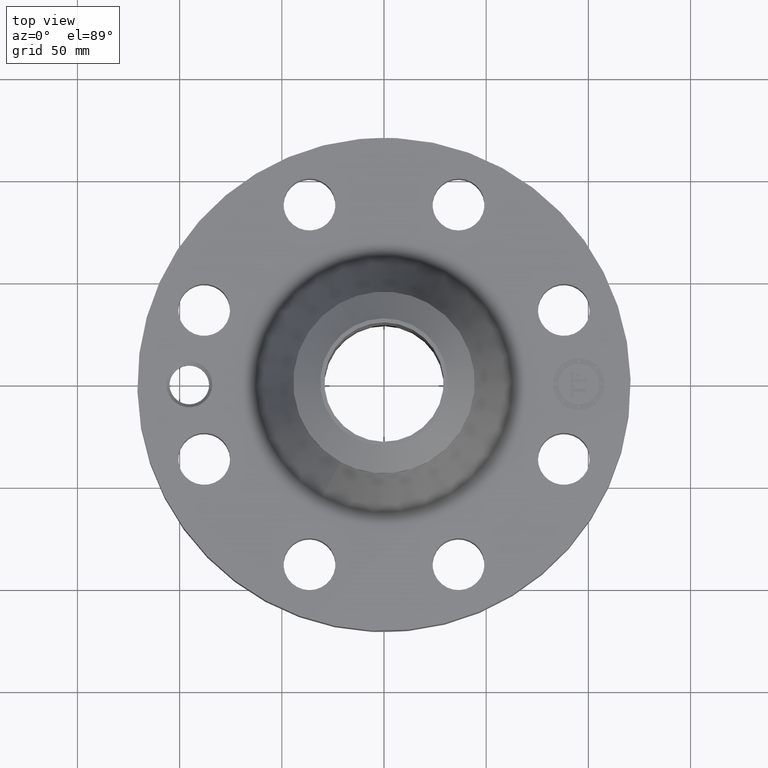
[diagram: clean part render]
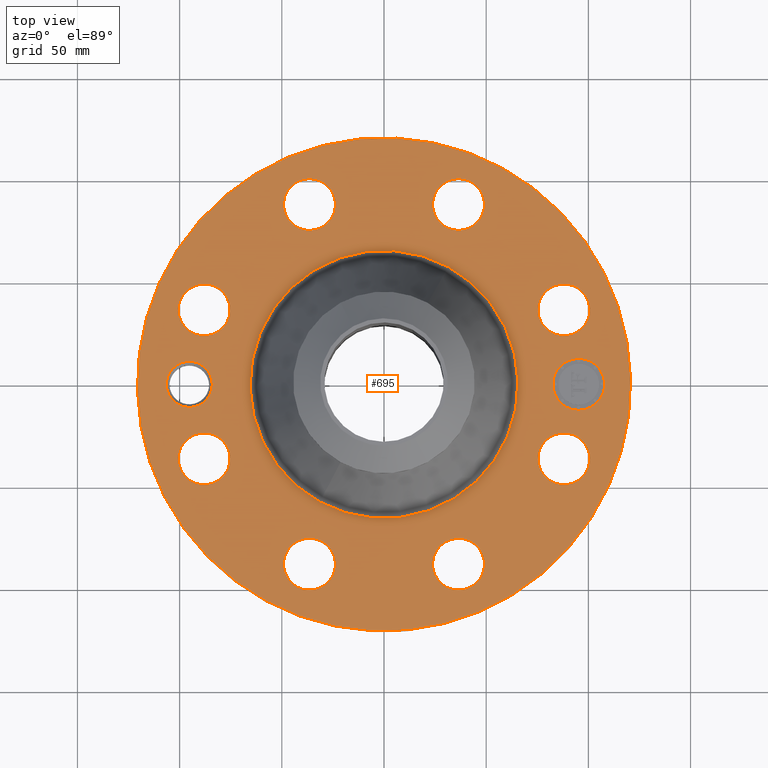
[diagram: same view with one face highlighted and labeled with its STEP entity id]
A machine part, top view. The second image highlights one B-rep face of the part: STEP entity #695.
In plain terms, the highlighted planar face has unit normal (0, 0, -1).
Its self-contained STEP definition (entity closure, byte-faithful):
#58=AXIS2_PLACEMENT_3D('Circle Axis2P3D',#56,#57,$) ;
#375=AXIS2_PLACEMENT_3D('Circle Axis2P3D',#373,#374,$) ;
#491=AXIS2_PLACEMENT_3D('Plane Axis2P3D',#488,#489,#490) ;
#499=AXIS2_PLACEMENT_3D('Circle Axis2P3D',#497,#498,$) ;
#508=AXIS2_PLACEMENT_3D('Circle Axis2P3D',#506,#507,$) ;
#517=AXIS2_PLACEMENT_3D('Circle Axis2P3D',#515,#516,$) ;
#526=AXIS2_PLACEMENT_3D('Circle Axis2P3D',#524,#525,$) ;
#535=AXIS2_PLACEMENT_3D('Circle Axis2P3D',#533,#534,$) ;
#544=AXIS2_PLACEMENT_3D('Circle Axis2P3D',#542,#543,$) ;
#553=AXIS2_PLACEMENT_3D('Circle Axis2P3D',#551,#552,$) ;
#562=AXIS2_PLACEMENT_3D('Circle Axis2P3D',#560,#561,$) ;
#571=AXIS2_PLACEMENT_3D('Circle Axis2P3D',#569,#570,$) ;
#580=AXIS2_PLACEMENT_3D('Circle Axis2P3D',#578,#579,$) ;
#589=AXIS2_PLACEMENT_3D('Circle Axis2P3D',#587,#588,$) ;
#598=AXIS2_PLACEMENT_3D('Circle Axis2P3D',#596,#597,$) ;
#607=AXIS2_PLACEMENT_3D('Circle Axis2P3D',#605,#606,$) ;
#616=AXIS2_PLACEMENT_3D('Circle Axis2P3D',#614,#615,$) ;
#625=AXIS2_PLACEMENT_3D('Circle Axis2P3D',#623,#624,$) ;
#634=AXIS2_PLACEMENT_3D('Circle Axis2P3D',#632,#633,$) ;
#643=AXIS2_PLACEMENT_3D('Circle Axis2P3D',#641,#642,$) ;
#652=AXIS2_PLACEMENT_3D('Circle Axis2P3D',#650,#651,$) ;
#661=AXIS2_PLACEMENT_3D('Circle Axis2P3D',#659,#660,$) ;
#670=AXIS2_PLACEMENT_3D('Circle Axis2P3D',#668,#669,$) ;
#679=AXIS2_PLACEMENT_3D('Circle Axis2P3D',#677,#678,$) ;
#688=AXIS2_PLACEMENT_3D('Circle Axis2P3D',#686,#687,$) ;
#53=CARTESIAN_POINT('Vertex',(-2.27727130838,-4.168517169,1.75000000001)) ;
#56=CARTESIAN_POINT('Axis2P3D Location',(0.,0.,1.75000000001)) ;
#60=CARTESIAN_POINT('Vertex',(2.27727130838,4.168517169,1.75000000001)) ;
#373=CARTESIAN_POINT('Axis2P3D Location',(0.,0.,1.75000000001)) ;
#488=CARTESIAN_POINT('Axis2P3D Location',(0.,4.75000000002,1.75000000001)) ;
#497=CARTESIAN_POINT('Axis2P3D Location',(-3.75000000001,5.59482469102E-016,1.75000000001)) ;
#501=CARTESIAN_POINT('Vertex',(-4.13859355842,0.212289628495,1.75000000001)) ;
#503=CARTESIAN_POINT('Vertex',(-3.36140644161,-0.212289628495,1.75000000001)) ;
#506=CARTESIAN_POINT('Axis2P3D Location',(-3.75000000001,5.59482469102E-016,1.75000000001)) ;
#515=CARTESIAN_POINT('Axis2P3D Location',(3.46454824693,-1.43506287137,1.75000000001)) ;
#519=CARTESIAN_POINT('Vertex',(3.02575696598,-1.19535010207,1.75000000001)) ;
#521=CARTESIAN_POINT('Vertex',(3.90333952788,-1.67477564068,1.75000000001)) ;
#524=CARTESIAN_POINT('Axis2P3D Location',(3.46454824693,-1.43506287137,1.75000000001)) ;
#533=CARTESIAN_POINT('Axis2P3D Location',(0.,0.,1.75000000001)) ;
#537=CARTESIAN_POINT('Vertex',(-1.23742749971,-2.26509584472,1.75000000001)) ;
#539=CARTESIAN_POINT('Vertex',(1.23742749971,2.26509584472,1.75000000001)) ;
#542=CARTESIAN_POINT('Axis2P3D Location',(0.,0.,1.75000000001)) ;
#551=CARTESIAN_POINT('Axis2P3D Location',(1.43506287137,-3.46454824693,1.75000000001)) ;
#555=CARTESIAN_POINT('Vertex',(1.57583263695,-3.94432306193,1.75000000001)) ;
#557=CARTESIAN_POINT('Vertex',(1.2942931058,-2.98477343194,1.75000000001)) ;
#560=CARTESIAN_POINT('Axis2P3D Location',(1.43506287137,-3.46454824693,1.75000000001)) ;
#569=CARTESIAN_POINT('Axis2P3D Location',(-1.43506287137,-3.46454824693,1.75000000001)) ;
#573=CARTESIAN_POINT('Vertex',(-1.67477564068,-3.90333952788,1.75000000001)) ;
#575=CARTESIAN_POINT('Vertex',(-1.19535010207,-3.02575696598,1.75000000001)) ;
#578=CARTESIAN_POINT('Axis2P3D Location',(-1.43506287137,-3.46454824693,1.75000000001)) ;
#587=CARTESIAN_POINT('Axis2P3D Location',(-3.46454824693,-1.43506287137,1.75000000001)) ;
#591=CARTESIAN_POINT('Vertex',(-3.94432306193,-1.57583263695,1.75000000001)) ;
#593=CARTESIAN_POINT('Vertex',(-2.98477343194,-1.2942931058,1.75000000001)) ;
#596=CARTESIAN_POINT('Axis2P3D Location',(-3.46454824693,-1.43506287137,1.75000000001)) ;
#605=CARTESIAN_POINT('Axis2P3D Location',(-3.46454824693,1.43506287137,1.75000000001)) ;
#609=CARTESIAN_POINT('Vertex',(-3.90333952788,1.67477564068,1.75000000001)) ;
#611=CARTESIAN_POINT('Vertex',(-3.02575696598,1.19535010207,1.75000000001)) ;
#614=CARTESIAN_POINT('Axis2P3D Location',(-3.46454824693,1.43506287137,1.75000000001)) ;
#623=CARTESIAN_POINT('Axis2P3D Location',(-1.43506287137,3.46454824693,1.75000000001)) ;
#627=CARTESIAN_POINT('Vertex',(-1.57583263695,3.94432306193,1.75000000001)) ;
#629=CARTESIAN_POINT('Vertex',(-1.2942931058,2.98477343194,1.75000000001)) ;
#632=CARTESIAN_POINT('Axis2P3D Location',(-1.43506287137,3.46454824693,1.75000000001)) ;
#641=CARTESIAN_POINT('Axis2P3D Location',(1.43506287137,3.46454824693,1.75000000001)) ;
#645=CARTESIAN_POINT('Vertex',(1.67477564068,3.90333952788,1.75000000001)) ;
#647=CARTESIAN_POINT('Vertex',(1.19535010207,3.02575696598,1.75000000001)) ;
#650=CARTESIAN_POINT('Axis2P3D Location',(1.43506287137,3.46454824693,1.75000000001)) ;
#659=CARTESIAN_POINT('Axis2P3D Location',(3.46454824693,1.43506287137,1.75000000001)) ;
#663=CARTESIAN_POINT('Vertex',(3.94432306193,1.57583263695,1.75000000001)) ;
#665=CARTESIAN_POINT('Vertex',(2.98477343194,1.2942931058,1.75000000001)) ;
#668=CARTESIAN_POINT('Axis2P3D Location',(3.46454824693,1.43506287137,1.75000000001)) ;
#677=CARTESIAN_POINT('Axis2P3D Location',(3.75000000002,-1.84629214804E-014,1.75000000001)) ;
#681=CARTESIAN_POINT('Vertex',(3.75000000001,0.499999995002,1.75000000001)) ;
#683=CARTESIAN_POINT('Vertex',(3.75000000002,-0.499999995002,1.75000000001)) ;
#686=CARTESIAN_POINT('Axis2P3D Location',(3.75000000002,-1.84629214804E-014,1.75000000001)) ;
#57=DIRECTION('Axis2P3D Direction',(0.,0.,-0.0393700787402)) ;
#374=DIRECTION('Axis2P3D Direction',(0.,0.,-0.0393700787402)) ;
#489=DIRECTION('Axis2P3D Direction',(0.,0.,-0.0393700787402)) ;
#490=DIRECTION('Axis2P3D XDirection',(0.0393700787402,0.,0.)) ;
#498=DIRECTION('Axis2P3D Direction',(0.,0.,-0.0393700787402)) ;
#507=DIRECTION('Axis2P3D Direction',(0.,0.,-0.0393700787402)) ;
#516=DIRECTION('Axis2P3D Direction',(0.,0.,-0.0393700787402)) ;
#525=DIRECTION('Axis2P3D Direction',(0.,0.,-0.0393700787402)) ;
#534=DIRECTION('Axis2P3D Direction',(0.,0.,-0.0393700787402)) ;
#543=DIRECTION('Axis2P3D Direction',(0.,0.,-0.0393700787402)) ;
#552=DIRECTION('Axis2P3D Direction',(0.,0.,-0.0393700787402)) ;
#561=DIRECTION('Axis2P3D Direction',(0.,0.,-0.0393700787402)) ;
#570=DIRECTION('Axis2P3D Direction',(0.,0.,-0.0393700787402)) ;
#579=DIRECTION('Axis2P3D Direction',(0.,0.,-0.0393700787402)) ;
#588=DIRECTION('Axis2P3D Direction',(0.,0.,-0.0393700787402)) ;
#597=DIRECTION('Axis2P3D Direction',(0.,0.,-0.0393700787402)) ;
#606=DIRECTION('Axis2P3D Direction',(0.,0.,-0.0393700787402)) ;
#615=DIRECTION('Axis2P3D Direction',(0.,0.,-0.0393700787402)) ;
#624=DIRECTION('Axis2P3D Direction',(0.,0.,-0.0393700787402)) ;
#633=DIRECTION('Axis2P3D Direction',(0.,0.,-0.0393700787402)) ;
#642=DIRECTION('Axis2P3D Direction',(0.,0.,-0.0393700787402)) ;
#651=DIRECTION('Axis2P3D Direction',(0.,0.,-0.0393700787402)) ;
#660=DIRECTION('Axis2P3D Direction',(0.,0.,-0.0393700787402)) ;
#669=DIRECTION('Axis2P3D Direction',(0.,0.,-0.0393700787402)) ;
#678=DIRECTION('Axis2P3D Direction',(0.,0.,-0.0393700787402)) ;
#687=DIRECTION('Axis2P3D Direction',(0.,0.,-0.0393700787402)) ;
#494=ORIENTED_EDGE('',*,*,#377,.F.) ;
#495=ORIENTED_EDGE('',*,*,#62,.F.) ;
#512=ORIENTED_EDGE('',*,*,#505,.T.) ;
#513=ORIENTED_EDGE('',*,*,#510,.T.) ;
#530=ORIENTED_EDGE('',*,*,#523,.T.) ;
#531=ORIENTED_EDGE('',*,*,#528,.T.) ;
#548=ORIENTED_EDGE('',*,*,#541,.T.) ;
#549=ORIENTED_EDGE('',*,*,#546,.T.) ;
#566=ORIENTED_EDGE('',*,*,#559,.T.) ;
#567=ORIENTED_EDGE('',*,*,#564,.T.) ;
#584=ORIENTED_EDGE('',*,*,#577,.T.) ;
#585=ORIENTED_EDGE('',*,*,#582,.T.) ;
#602=ORIENTED_EDGE('',*,*,#595,.T.) ;
#603=ORIENTED_EDGE('',*,*,#600,.T.) ;
#620=ORIENTED_EDGE('',*,*,#613,.T.) ;
#621=ORIENTED_EDGE('',*,*,#618,.T.) ;
#638=ORIENTED_EDGE('',*,*,#631,.T.) ;
#639=ORIENTED_EDGE('',*,*,#636,.T.) ;
#656=ORIENTED_EDGE('',*,*,#649,.T.) ;
#657=ORIENTED_EDGE('',*,*,#654,.T.) ;
#674=ORIENTED_EDGE('',*,*,#667,.T.) ;
#675=ORIENTED_EDGE('',*,*,#672,.T.) ;
#692=ORIENTED_EDGE('',*,*,#685,.T.) ;
#693=ORIENTED_EDGE('',*,*,#690,.T.) ;
#514=FACE_BOUND('',#511,.T.) ;
#532=FACE_BOUND('',#529,.T.) ;
#550=FACE_BOUND('',#547,.T.) ;
#568=FACE_BOUND('',#565,.T.) ;
#586=FACE_BOUND('',#583,.T.) ;
#604=FACE_BOUND('',#601,.T.) ;
#622=FACE_BOUND('',#619,.T.) ;
#640=FACE_BOUND('',#637,.T.) ;
#658=FACE_BOUND('',#655,.T.) ;
#676=FACE_BOUND('',#673,.T.) ;
#694=FACE_BOUND('',#691,.T.) ;
#695=ADVANCED_FACE('PartBody',(#496,#514,#532,#550,#568,#586,#604,#622,#640,#658,#676,#694),#492,.F.) ;
#59=CIRCLE('generated circle',#58,4.75000000002) ;
#376=CIRCLE('generated circle',#375,4.75000000002) ;
#500=CIRCLE('generated circle',#499,0.442800000002) ;
#509=CIRCLE('generated circle',#508,0.442800000002) ;
#518=CIRCLE('generated circle',#517,0.500000000002) ;
#527=CIRCLE('generated circle',#526,0.500000000002) ;
#536=CIRCLE('generated circle',#535,2.58106295987) ;
#545=CIRCLE('generated circle',#544,2.58106295987) ;
#554=CIRCLE('generated circle',#553,0.500000000002) ;
#563=CIRCLE('generated circle',#562,0.500000000002) ;
#572=CIRCLE('generated circle',#571,0.500000000002) ;
#581=CIRCLE('generated circle',#580,0.500000000002) ;
#590=CIRCLE('generated circle',#589,0.500000000002) ;
#599=CIRCLE('generated circle',#598,0.500000000002) ;
#608=CIRCLE('generated circle',#607,0.500000000002) ;
#617=CIRCLE('generated circle',#616,0.500000000002) ;
#626=CIRCLE('generated circle',#625,0.500000000002) ;
#635=CIRCLE('generated circle',#634,0.500000000002) ;
#644=CIRCLE('generated circle',#643,0.500000000002) ;
#653=CIRCLE('generated circle',#652,0.500000000002) ;
#662=CIRCLE('generated circle',#661,0.500000000002) ;
#671=CIRCLE('generated circle',#670,0.500000000002) ;
#680=CIRCLE('generated circle',#679,0.499999995002) ;
#689=CIRCLE('generated circle',#688,0.499999995002) ;
#62=EDGE_CURVE('',#54,#61,#59,.T.) ;
#377=EDGE_CURVE('',#61,#54,#376,.T.) ;
#505=EDGE_CURVE('',#502,#504,#500,.T.) ;
#510=EDGE_CURVE('',#504,#502,#509,.T.) ;
#523=EDGE_CURVE('',#520,#522,#518,.T.) ;
#528=EDGE_CURVE('',#522,#520,#527,.T.) ;
#541=EDGE_CURVE('',#538,#540,#536,.T.) ;
#546=EDGE_CURVE('',#540,#538,#545,.T.) ;
#559=EDGE_CURVE('',#556,#558,#554,.T.) ;
#564=EDGE_CURVE('',#558,#556,#563,.T.) ;
#577=EDGE_CURVE('',#574,#576,#572,.T.) ;
#582=EDGE_CURVE('',#576,#574,#581,.T.) ;
#595=EDGE_CURVE('',#592,#594,#590,.T.) ;
#600=EDGE_CURVE('',#594,#592,#599,.T.) ;
#613=EDGE_CURVE('',#610,#612,#608,.T.) ;
#618=EDGE_CURVE('',#612,#610,#617,.T.) ;
#631=EDGE_CURVE('',#628,#630,#626,.T.) ;
#636=EDGE_CURVE('',#630,#628,#635,.T.) ;
#649=EDGE_CURVE('',#646,#648,#644,.T.) ;
#654=EDGE_CURVE('',#648,#646,#653,.T.) ;
#667=EDGE_CURVE('',#664,#666,#662,.T.) ;
#672=EDGE_CURVE('',#666,#664,#671,.T.) ;
#685=EDGE_CURVE('',#682,#684,#680,.T.) ;
#690=EDGE_CURVE('',#684,#682,#689,.T.) ;
#493=EDGE_LOOP('',(#494,#495)) ;
#511=EDGE_LOOP('',(#512,#513)) ;
#529=EDGE_LOOP('',(#530,#531)) ;
#547=EDGE_LOOP('',(#548,#549)) ;
#565=EDGE_LOOP('',(#566,#567)) ;
#583=EDGE_LOOP('',(#584,#585)) ;
#601=EDGE_LOOP('',(#602,#603)) ;
#619=EDGE_LOOP('',(#620,#621)) ;
#637=EDGE_LOOP('',(#638,#639)) ;
#655=EDGE_LOOP('',(#656,#657)) ;
#673=EDGE_LOOP('',(#674,#675)) ;
#691=EDGE_LOOP('',(#692,#693)) ;
#496=FACE_OUTER_BOUND('',#493,.T.) ;
#492=PLANE('',#491) ;
#54=VERTEX_POINT('',#53) ;
#61=VERTEX_POINT('',#60) ;
#502=VERTEX_POINT('',#501) ;
#504=VERTEX_POINT('',#503) ;
#520=VERTEX_POINT('',#519) ;
#522=VERTEX_POINT('',#521) ;
#538=VERTEX_POINT('',#537) ;
#540=VERTEX_POINT('',#539) ;
#556=VERTEX_POINT('',#555) ;
#558=VERTEX_POINT('',#557) ;
#574=VERTEX_POINT('',#573) ;
#576=VERTEX_POINT('',#575) ;
#592=VERTEX_POINT('',#591) ;
#594=VERTEX_POINT('',#593) ;
#610=VERTEX_POINT('',#609) ;
#612=VERTEX_POINT('',#611) ;
#628=VERTEX_POINT('',#627) ;
#630=VERTEX_POINT('',#629) ;
#646=VERTEX_POINT('',#645) ;
#648=VERTEX_POINT('',#647) ;
#664=VERTEX_POINT('',#663) ;
#666=VERTEX_POINT('',#665) ;
#682=VERTEX_POINT('',#681) ;
#684=VERTEX_POINT('',#683) ;